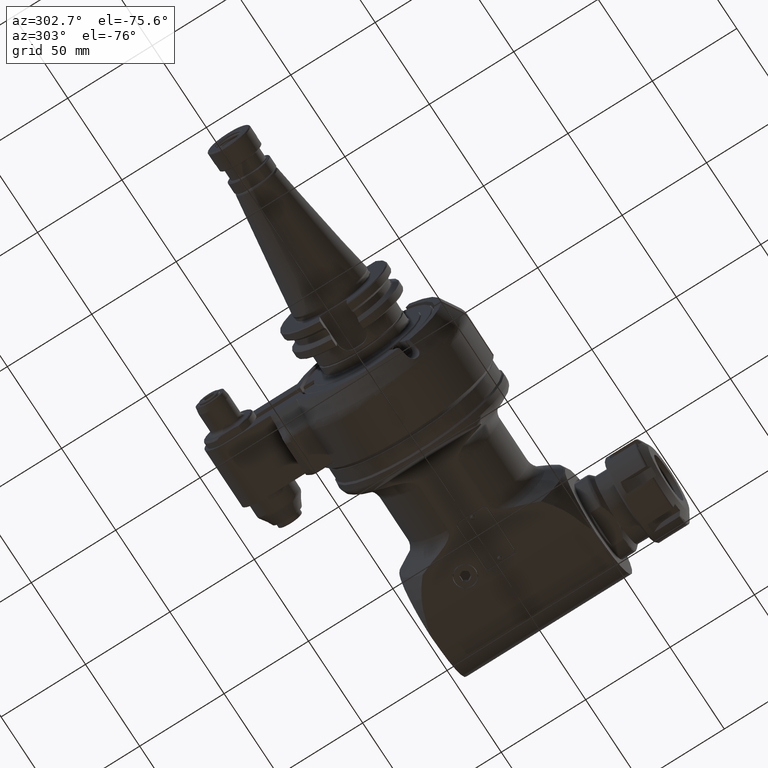
[diagram: clean part render]
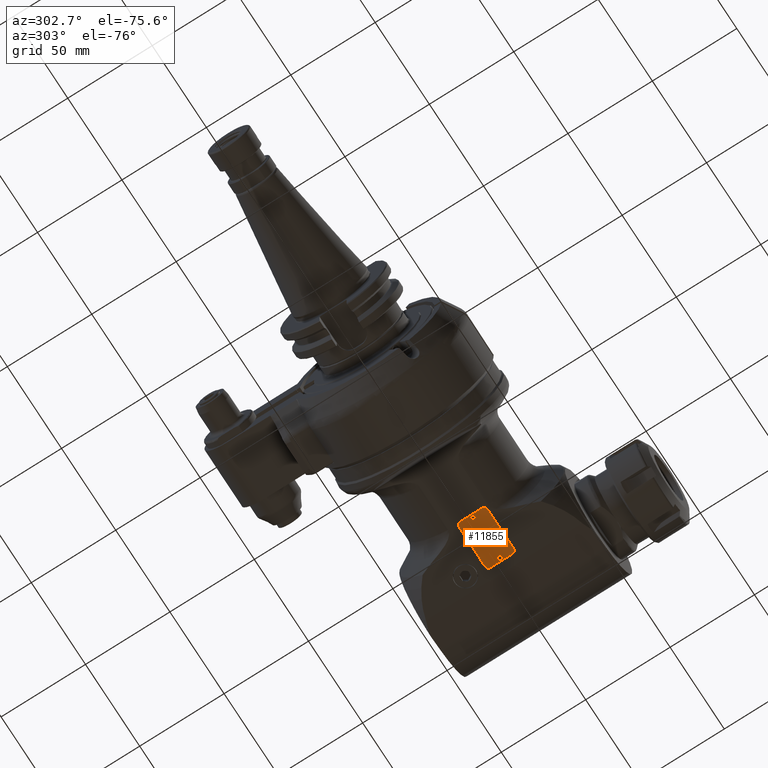
[diagram: same view with one face highlighted and labeled with its STEP entity id]
A machine part, auxiliary view. The second image highlights one B-rep face of the part: STEP entity #11855.
In plain terms, the highlighted planar face has unit normal (0, -0, 1).
Its self-contained STEP definition (entity closure, byte-faithful):
#791=FACE_BOUND('',#3624,.T.);
#792=FACE_BOUND('',#3625,.T.);
#1230=LINE('',#22879,#2087);
#1233=LINE('',#22887,#2090);
#1236=LINE('',#22895,#2093);
#1239=LINE('',#22902,#2096);
#2087=VECTOR('',#14487,13.);
#2090=VECTOR('',#14496,24.);
#2093=VECTOR('',#14505,13.);
#2096=VECTOR('',#14514,24.);
#2941=FACE_OUTER_BOUND('',#3623,.T.);
#3623=EDGE_LOOP('',(#9147,#9148,#9149,#9150,#9151,#9152,#9153,#9154));
#3624=EDGE_LOOP('',(#9155));
#3625=EDGE_LOOP('',(#9156));
#4248=CIRCLE('',#12692,2.);
#4249=CIRCLE('',#12695,2.);
#4250=CIRCLE('',#12698,2.);
#4251=CIRCLE('',#12701,2.);
#4252=CIRCLE('',#12704,1.25);
#4253=CIRCLE('',#12705,1.25);
#5126=VERTEX_POINT('',#22872);
#5127=VERTEX_POINT('',#22874);
#5128=VERTEX_POINT('',#22878);
#5129=VERTEX_POINT('',#22882);
#5130=VERTEX_POINT('',#22886);
#5131=VERTEX_POINT('',#22890);
#5132=VERTEX_POINT('',#22894);
#5133=VERTEX_POINT('',#22898);
#5134=VERTEX_POINT('',#22904);
#5135=VERTEX_POINT('',#22906);
#6573=EDGE_CURVE('',#5126,#5127,#4248,.T.);
#6574=EDGE_CURVE('',#5126,#5128,#1230,.T.);
#6577=EDGE_CURVE('',#5129,#5128,#4249,.T.);
#6578=EDGE_CURVE('',#5129,#5130,#1233,.T.);
#6580=EDGE_CURVE('',#5131,#5130,#4250,.T.);
#6582=EDGE_CURVE('',#5131,#5132,#1236,.T.);
#6585=EDGE_CURVE('',#5133,#5132,#4251,.T.);
#6586=EDGE_CURVE('',#5133,#5127,#1239,.T.);
#6587=EDGE_CURVE('',#5134,#5134,#4252,.T.);
#6588=EDGE_CURVE('',#5135,#5135,#4253,.T.);
#9147=ORIENTED_EDGE('',*,*,#6578,.F.);
#9148=ORIENTED_EDGE('',*,*,#6577,.T.);
#9149=ORIENTED_EDGE('',*,*,#6574,.F.);
#9150=ORIENTED_EDGE('',*,*,#6573,.T.);
#9151=ORIENTED_EDGE('',*,*,#6586,.F.);
#9152=ORIENTED_EDGE('',*,*,#6585,.T.);
#9153=ORIENTED_EDGE('',*,*,#6582,.F.);
#9154=ORIENTED_EDGE('',*,*,#6580,.T.);
#9155=ORIENTED_EDGE('',*,*,#6587,.T.);
#9156=ORIENTED_EDGE('',*,*,#6588,.T.);
#11453=PLANE('',#12703);
#11855=ADVANCED_FACE('',(#2941,#791,#792),#11453,.F.);
#12692=AXIS2_PLACEMENT_3D('',#22876,#14483,#14484);
#12695=AXIS2_PLACEMENT_3D('',#22884,#14492,#14493);
#12698=AXIS2_PLACEMENT_3D('',#22891,#14500,#14501);
#12701=AXIS2_PLACEMENT_3D('',#22900,#14510,#14511);
#12703=AXIS2_PLACEMENT_3D('',#22903,#14515,#14516);
#12704=AXIS2_PLACEMENT_3D('',#22905,#14517,#14518);
#12705=AXIS2_PLACEMENT_3D('',#22907,#14519,#14520);
#14483=DIRECTION('center_axis',(0.,0.,-1.));
#14484=DIRECTION('ref_axis',(-1.,0.,0.));
#14487=DIRECTION('',(0.,-1.,0.));
#14492=DIRECTION('center_axis',(0.,0.,-1.));
#14493=DIRECTION('ref_axis',(-9.947598300641E-14,-1.,0.));
#14496=DIRECTION('',(1.,0.,0.));
#14500=DIRECTION('center_axis',(0.,0.,-1.));
#14501=DIRECTION('ref_axis',(1.,0.,0.));
#14505=DIRECTION('',(0.,1.,0.));
#14510=DIRECTION('center_axis',(0.,0.,-1.));
#14511=DIRECTION('ref_axis',(0.,1.,0.));
#14514=DIRECTION('',(-1.,0.,0.));
#14515=DIRECTION('center_axis',(0.,0.,1.));
#14516=DIRECTION('ref_axis',(0.,-1.,0.));
#14517=DIRECTION('center_axis',(0.,0.,1.));
#14518=DIRECTION('ref_axis',(0.,-1.,0.));
#14519=DIRECTION('center_axis',(0.,0.,1.));
#14520=DIRECTION('ref_axis',(0.,-1.,0.));
#22872=CARTESIAN_POINT('',(233.5630966055,4.49999962793,-34.));
#22874=CARTESIAN_POINT('',(235.5630966055,6.49999962793,-34.));
#22876=CARTESIAN_POINT('Origin',(235.5630966055,4.49999962793,-34.));
#22878=CARTESIAN_POINT('',(233.5630966055,-8.50000037207,-34.));
#22879=CARTESIAN_POINT('',(233.5630966055,4.49999962793,-34.));
#22882=CARTESIAN_POINT('',(235.5630966055,-10.50000037207,-34.));
#22884=CARTESIAN_POINT('Origin',(235.5630966055,-8.50000037207,-34.));
#22886=CARTESIAN_POINT('',(259.5630966055,-10.50000037207,-34.));
#22887=CARTESIAN_POINT('',(235.5630966055,-10.50000037207,-34.));
#22890=CARTESIAN_POINT('',(261.5630966055,-8.50000037207,-34.));
#22891=CARTESIAN_POINT('Origin',(259.5630966055,-8.50000037207,-34.));
#22894=CARTESIAN_POINT('',(261.5630966055,4.49999962793,-34.));
#22895=CARTESIAN_POINT('',(261.5630966055,-8.50000037207,-34.));
#22898=CARTESIAN_POINT('',(259.5630966055,6.49999962793,-34.));
#22900=CARTESIAN_POINT('Origin',(259.5630966055,4.49999962793,-34.));
#22902=CARTESIAN_POINT('',(259.5630966055,6.49999962793,-34.));
#22903=CARTESIAN_POINT('Origin',(254.0072485132,3.663013231942,-34.));
#22904=CARTESIAN_POINT('',(260.0630966055,-3.25000037207,-34.));
#22905=CARTESIAN_POINT('Origin',(260.0630966055,-2.00000037207,-34.));
#22906=CARTESIAN_POINT('',(235.0630966055,-3.25000037207,-34.));
#22907=CARTESIAN_POINT('Origin',(235.0630966055,-2.00000037207,-34.));